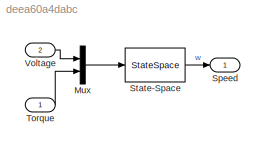
MODEL slx_deea60a4dabc
KIND library
CONFIG AbsTol = auto
CONFIG EnableMultiTasking = off
CONFIG FixedStep = auto
CONFIG MaxStep = auto
CONFIG MinStep = auto
CONFIG RelTol = 1e-3
CONFIG SampleTimeConstraint = Unconstrained
CONFIG Solver = VariableStepAuto
CONFIG SolverName = VariableStepAuto
CONFIG StartTime = 0.0
CONFIG StopTime = 10.0
BLOCK [Mux] Mux
  DisplayOption = bar
  Inputs = 2
  Ports = [2, 1]
BLOCK [Outport] Speed
  IconDisplay = Port number
BLOCK [StateSpace] State-Space
  A = [-b/J K/J; -K/L -R/L]
  B = [0 -1/J; 1/L 0]
  C = [1 0]
  D = [0 0]
  InitialCondition = 0
  Ports = [1, 1]
BLOCK [Inport] Torque
  IconDisplay = Port number
BLOCK [Inport] Voltage
  IconDisplay = Port number
  Port = 2
LINE Mux:1 -> State-Space:1
LINE State-Space:1 -> Speed:1
LINE Torque:1 -> Mux:2
LINE Voltage:1 -> Mux:1
